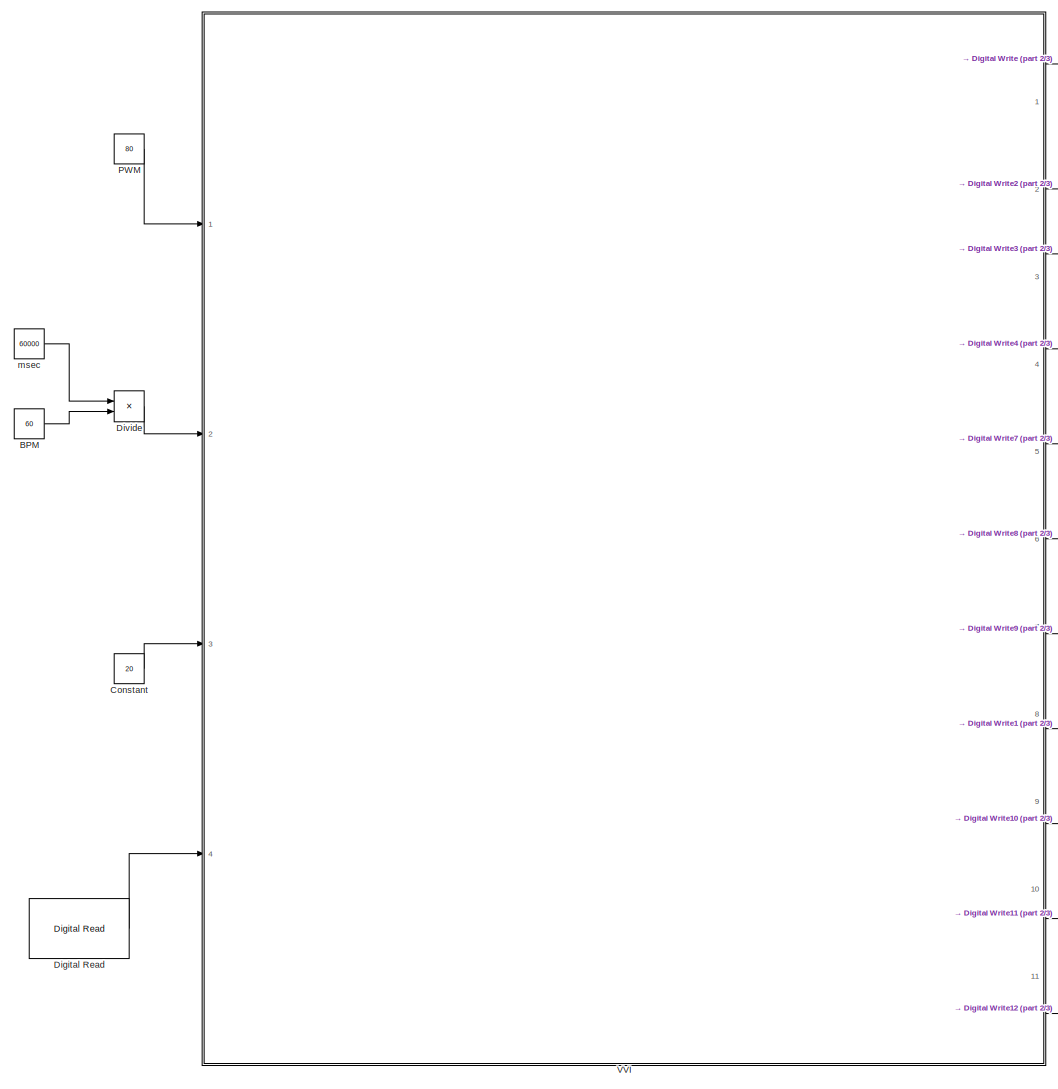
[diagram: root canvas - part 1/3, most of the canvas]
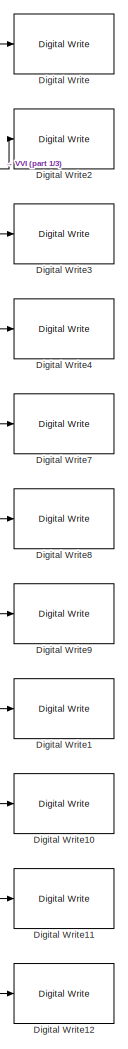
[diagram: root canvas - part 2/3, right side, full height]
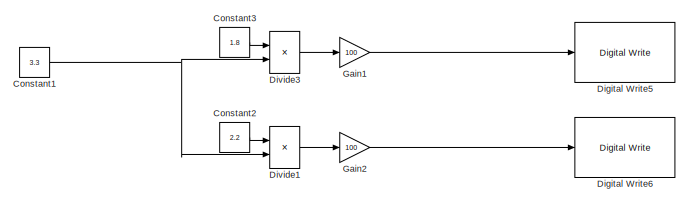
[diagram: root canvas - part 3/3, bottom right region]
MODEL slx_ac36f96f35df
KIND model
CONFIG AbsTol = auto
CONFIG EnableMultiTasking = on
CONFIG FixedStep = 1e-3
CONFIG MaxStep = auto
CONFIG MinStep = auto
CONFIG RelTol = 1e-3
CONFIG SampleTimeConstraint = Unconstrained
CONFIG SolverName = FixedStepAuto
CONFIG StartTime = 0.0
CONFIG StopTime = 10.0
BLOCK [Constant] BPM
  Value = 60
BLOCK [Constant] Constant
  Value = 20
BLOCK [Constant] Constant1
  Value = 3.3
BLOCK [Constant] Constant2
  Value = 2.2
BLOCK [Constant] Constant3
  Value = 1.8
BLOCK [Reference] Digital Read  REF=frdmk64flib/Digital Read
  Ports = [0, 1]
  SourceBlock = frdmk64flib/Digital Read
  SourceProductBaseCode = EC_FRDM_K64F
  SourceType = freedomk64f.DigitalRead
BLOCK [Reference] Digital Write  REF=frdmk64flib/Digital Write
  Ports = [1]
  SourceBlock = frdmk64flib/Digital Write
  SourceProductBaseCode = EC_FRDM_K64F
  SourceType = freedomk64f.DigitalWrite
BLOCK [Reference] Digital Write1  REF=frdmk64flib/Digital Write
  Ports = [1]
  SourceBlock = frdmk64flib/Digital Write
  SourceProductBaseCode = EC_FRDM_K64F
  SourceType = freedomk64f.DigitalWrite
BLOCK [Reference] Digital Write10  REF=frdmk64flib/Digital Write
  Ports = [1]
  SourceBlock = frdmk64flib/Digital Write
  SourceProductBaseCode = EC_FRDM_K64F
  SourceType = freedomk64f.DigitalWrite
BLOCK [Reference] Digital Write11  REF=frdmk64flib/Digital Write
  Ports = [1]
  SourceBlock = frdmk64flib/Digital Write
  SourceProductBaseCode = EC_FRDM_K64F
  SourceType = freedomk64f.DigitalWrite
BLOCK [Reference] Digital Write12  REF=frdmk64flib/Digital Write
  Ports = [1]
  SourceBlock = frdmk64flib/Digital Write
  SourceProductBaseCode = EC_FRDM_K64F
  SourceType = freedomk64f.DigitalWrite
BLOCK [Reference] Digital Write2  REF=frdmk64flib/Digital Write
  Ports = [1]
  SourceBlock = frdmk64flib/Digital Write
  SourceProductBaseCode = EC_FRDM_K64F
  SourceType = freedomk64f.DigitalWrite
BLOCK [Reference] Digital Write3  REF=frdmk64flib/Digital Write
  Ports = [1]
  SourceBlock = frdmk64flib/Digital Write
  SourceProductBaseCode = EC_FRDM_K64F
  SourceType = freedomk64f.DigitalWrite
BLOCK [Reference] Digital Write4  REF=frdmk64flib/Digital Write
  Ports = [1]
  SourceBlock = frdmk64flib/Digital Write
  SourceProductBaseCode = EC_FRDM_K64F
  SourceType = freedomk64f.DigitalWrite
BLOCK [Reference] Digital Write5  REF=frdmk64flib/Digital Write
  Ports = [1]
  SourceBlock = frdmk64flib/Digital Write
  SourceProductBaseCode = EC_FRDM_K64F
  SourceType = freedomk64f.DigitalWrite
BLOCK [Reference] Digital Write6  REF=frdmk64flib/Digital Write
  Ports = [1]
  SourceBlock = frdmk64flib/Digital Write
  SourceProductBaseCode = EC_FRDM_K64F
  SourceType = freedomk64f.DigitalWrite
BLOCK [Reference] Digital Write7  REF=frdmk64flib/Digital Write
  Ports = [1]
  SourceBlock = frdmk64flib/Digital Write
  SourceProductBaseCode = EC_FRDM_K64F
  SourceType = freedomk64f.DigitalWrite
BLOCK [Reference] Digital Write8  REF=frdmk64flib/Digital Write
  Ports = [1]
  SourceBlock = frdmk64flib/Digital Write
  SourceProductBaseCode = EC_FRDM_K64F
  SourceType = freedomk64f.DigitalWrite
BLOCK [Reference] Digital Write9  REF=frdmk64flib/Digital Write
  Ports = [1]
  SourceBlock = frdmk64flib/Digital Write
  SourceProductBaseCode = EC_FRDM_K64F
  SourceType = freedomk64f.DigitalWrite
BLOCK [Product] Divide
  Inputs = */
  Ports = [2, 1]
BLOCK [Product] Divide1
  Inputs = */
  Ports = [2, 1]
BLOCK [Product] Divide3
  Inputs = */
  Ports = [2, 1]
BLOCK [Gain] Gain1
  Gain = 100
BLOCK [Gain] Gain2
  Gain = 100
BLOCK [Constant] PWM
  Value = 80
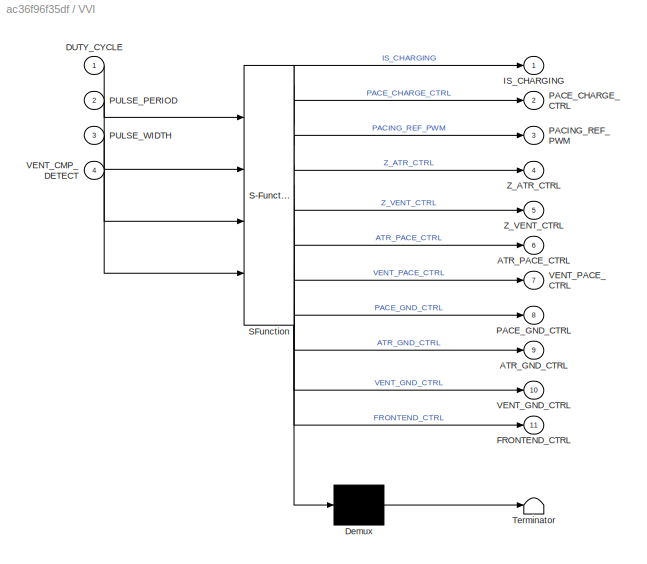
BLOCK [SubSystem] VVI
  ErrorFcn = Stateflow.Translate.translate
  PermitHierarchicalResolution = ExplicitOnly
  Ports = [4, 11]
  RequestExecContextInheritance = off
  SFBlockType = Chart
  TreatAsAtomicUnit = on
BLOCK [Demux] VVI/ Demux 
  Outputs = 1
  Ports = [1, 1]
BLOCK [S-Function] VVI/ SFunction 
  EnableBusSupport = on
  FunctionName = sf_sfun
  PortCounts = [4 12]
  Ports = [4, 12]
  SFcnIsStateOwnerBlock = off
  SFunctionDeploymentMode = off
  Tag = Stateflow S-Function 3
BLOCK [Terminator] VVI/ Terminator 
BLOCK [Outport] VVI/ATR_GND_CTRL
  Port = 9
BLOCK [Outport] VVI/ATR_PACE_CTRL
  Port = 6
BLOCK [Inport] VVI/DUTY_CYCLE
BLOCK [Outport] VVI/FRONTEND_CTRL
  Port = 11
BLOCK [Outport] VVI/IS_CHARGING
BLOCK [Outport] VVI/PACE_CHARGE_CTRL
  Port = 2
BLOCK [Outport] VVI/PACE_GND_CTRL
  Port = 8
BLOCK [Outport] VVI/PACING_REF_PWM
  Port = 3
BLOCK [Inport] VVI/PULSE_PERIOD
  Port = 2
BLOCK [Inport] VVI/PULSE_WIDTH
  Port = 3
BLOCK [Inport] VVI/VENT_CMP_DETECT
  Port = 4
BLOCK [Outport] VVI/VENT_GND_CTRL
  Port = 10
BLOCK [Outport] VVI/VENT_PACE_CTRL
  Port = 7
BLOCK [Outport] VVI/Z_ATR_CTRL
  Port = 4
BLOCK [Outport] VVI/Z_VENT_CTRL
  Port = 5
BLOCK [Constant] msec
  Value = 60000
LINE BPM:1 -> Divide:2
NET Constant1:1 -> Divide1:2, Divide3:2
LINE Constant2:1 -> Divide1:1
LINE Constant3:1 -> Divide3:1
LINE Constant:1 -> VVI:3
LINE Digital Read:1 -> VVI:4
LINE Divide1:1 -> Gain2:1
LINE Divide3:1 -> Gain1:1
LINE Divide:1 -> VVI:2
LINE Gain1:1 -> Digital Write5:1
LINE Gain2:1 -> Digital Write6:1
LINE PWM:1 -> VVI:1
LINE VVI:1 -> Digital Write:1
LINE VVI:10 -> Digital Write11:1
LINE VVI:11 -> Digital Write12:1
LINE VVI:2 -> Digital Write2:1
LINE VVI:3 -> Digital Write3:1
LINE VVI:4 -> Digital Write4:1
LINE VVI:5 -> Digital Write7:1
LINE VVI:6 -> Digital Write8:1
LINE VVI:7 -> Digital Write9:1
LINE VVI:8 -> Digital Write1:1
LINE VVI:9 -> Digital Write10:1
LINE msec:1 -> Divide:1
note: NET lines group one-source signal fan-out (src -> all destinations, sorted); 1:1 wires keep LINE
CHART VVI states=2 transitions=5
  STATE_LABEL 'Charging_C22\nduring:\nPACING_REF_PWM = DUTY_CYCLE\nPACE_CHARGE_CTRL = true\nPACE_GND_CTRL = true\nVENT_PACE_CTRL = false\nZ_ATR_CTRL = false\nZ_VENT_CTRL = false\nATR_PACE_CTRL = false\nATR_GND_CTRL = false\nVENT_GND_CTRL = true\n% For LED testing\nIS_CHARGING = true\n'
  STATE_LABEL 'Pacing\nduring:\nPACE_CHARGE_CTRL = false\nPACE_GND_CTRL = true\nATR_PACE_CTRL = false\nATR_GND_CTRL = false\nZ_ATR_CTRL = false\nZ_VENT_CTRL = false\nVENT_GND_CTRL = false\nVENT_PACE_CTRL = true\n% For LED testing\nIS_CHARGING = false'
CHART  states=0 transitions=0
